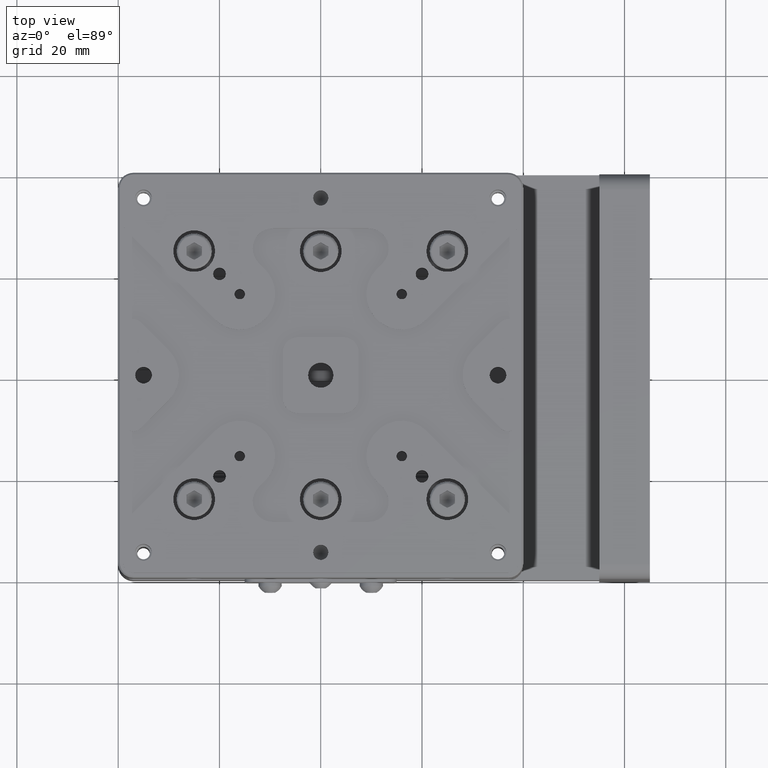
[diagram: clean part render]
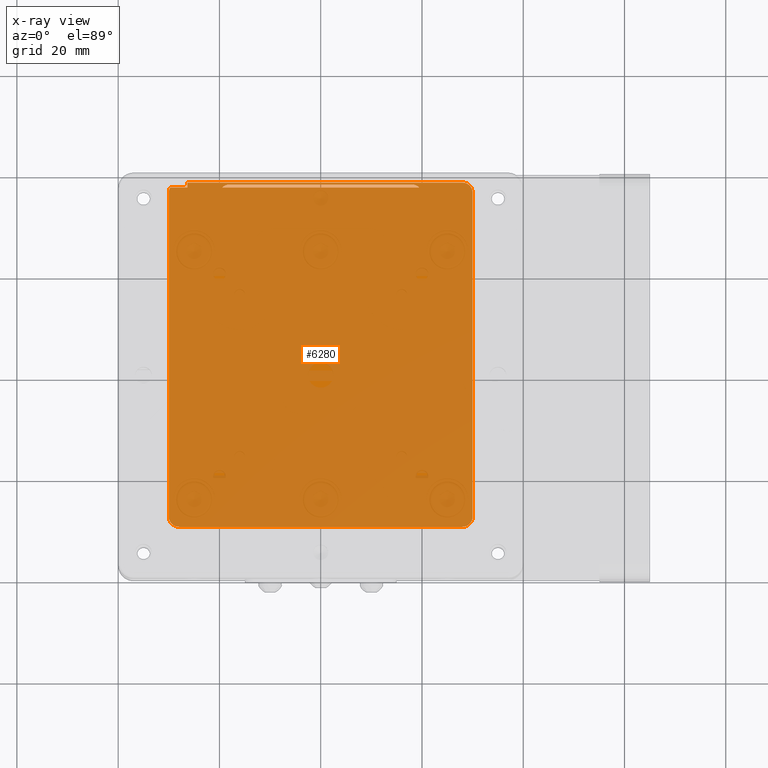
[diagram: x-ray — body ghosted, one internal face saturated and labeled with its STEP entity id]
A machine part, top view, then the same camera in x-ray: the body is ghosted and one INTERNAL B-rep face — a face not visible from any outside direction — is saturated and labeled: STEP entity #6280.
In plain terms, the highlighted planar face has unit normal (0, 0, -1).
Its self-contained STEP definition (entity closure, byte-faithful):
#135 = CARTESIAN_POINT ( 'NONE',  ( -29.64999999999987423, 37.63026545554590996, -11.40550439807743466 ) ) ;
#136 = DIRECTION ( 'NONE',  ( -1.000000000000000000, 0.000000000000000000, 0.000000000000000000 ) ) ;
#213 = DIRECTION ( 'NONE',  ( 0.000000000000000000, 0.000000000000000000, -1.000000000000000000 ) ) ;
#1092 = VERTEX_POINT ( 'NONE', #42782 ) ;
#1109 = VECTOR ( 'NONE', #53252, 1000.000000000000000 ) ;
#1307 = VERTEX_POINT ( 'NONE', #35851 ) ;
#2183 = DIRECTION ( 'NONE',  ( -0.000000000000000000, -1.000000000000000000, 0.000000000000000000 ) ) ;
#2864 = EDGE_LOOP ( 'NONE', ( #39412, #50908, #39846, #31613 ) ) ;
#3633 = VERTEX_POINT ( 'NONE', #22445 ) ;
#4176 = DIRECTION ( 'NONE',  ( -1.000000000000000000, 0.000000000000000000, 0.000000000000000000 ) ) ;
#4932 = EDGE_CURVE ( 'NONE', #19216, #18482, #28644, .T. ) ;
#5502 = CARTESIAN_POINT ( 'NONE',  ( -30.00000000000000000, 0.000000000000000000, -11.40550439807743466 ) ) ;
#6048 = CARTESIAN_POINT ( 'NONE',  ( -29.64999999999999858, 35.50000000000001421, -11.40550439807743466 ) ) ;
#6204 = EDGE_CURVE ( 'NONE', #3633, #19745, #23687, .T. ) ;
#6230 = AXIS2_PLACEMENT_3D ( 'NONE', #28081, #40801, #28373 ) ;
#6280 = ADVANCED_FACE ( 'NONE', ( #50530, #34213 ), #9404, .T. ) ;
#6610 = AXIS2_PLACEMENT_3D ( 'NONE', #9836, #51757, #26905 ) ;
#7859 = ORIENTED_EDGE ( 'NONE', *, *, #24988, .T. ) ;
#8406 = CARTESIAN_POINT ( 'NONE',  ( -28.00000000000000000, 36.50000000000000000, -11.40550439807743466 ) ) ;
#8722 = VECTOR ( 'NONE', #36209, 1000.000000000000000 ) ;
#8870 = DIRECTION ( 'NONE',  ( 0.000000000000000000, 0.000000000000000000, -1.000000000000000000 ) ) ;
#8923 = ORIENTED_EDGE ( 'NONE', *, *, #35606, .T. ) ;
#9404 = PLANE ( 'NONE',  #52769 ) ;
#9836 = CARTESIAN_POINT ( 'NONE',  ( -18.00000000000001421, 36.14999999999999858, -11.40550439807743821 ) ) ;
#11642 = LINE ( 'NONE', #36999, #27814 ) ;
#11777 = DIRECTION ( 'NONE',  ( 0.000000000000000000, 0.000000000000000000, 1.000000000000000000 ) ) ;
#13677 = VERTEX_POINT ( 'NONE', #23567 ) ;
#14966 = EDGE_CURVE ( 'NONE', #1092, #43391, #27449, .T. ) ;
#15549 = VERTEX_POINT ( 'NONE', #26772 ) ;
#16130 = DIRECTION ( 'NONE',  ( -1.000000000000000000, 0.000000000000000000, -0.000000000000000000 ) ) ;
#16456 = DIRECTION ( 'NONE',  ( 1.000000000000000000, 0.000000000000000000, 0.000000000000000000 ) ) ;
#16528 = DIRECTION ( 'NONE',  ( 1.000000000000000000, -0.000000000000000000, 0.000000000000000000 ) ) ;
#17505 = AXIS2_PLACEMENT_3D ( 'NONE', #37832, #41971, #4176 ) ;
#18313 = VERTEX_POINT ( 'NONE', #34356 ) ;
#18482 = VERTEX_POINT ( 'NONE', #27439 ) ;
#18623 = AXIS2_PLACEMENT_3D ( 'NONE', #8406, #41520, #136 ) ;
#19216 = VERTEX_POINT ( 'NONE', #42230 ) ;
#19745 = VERTEX_POINT ( 'NONE', #36562 ) ;
#20311 = CARTESIAN_POINT ( 'NONE',  ( -19.44614971338464571, 37.53153936117561784, -11.40550439807743821 ) ) ;
#21067 = EDGE_CURVE ( 'NONE', #53473, #1092, #24149, .T. ) ;
#22445 = CARTESIAN_POINT ( 'NONE',  ( 30.00000000000000000, -27.50000000000000355, -11.40550439807743466 ) ) ;
#22722 = VECTOR ( 'NONE', #24260, 1000.000000000000000 ) ;
#23067 = VECTOR ( 'NONE', #2183, 1000.000000000000000 ) ;
#23129 = CARTESIAN_POINT ( 'NONE',  ( 0.000000000000000000, -29.50000000000000711, -11.40550439807743466 ) ) ;
#23567 = CARTESIAN_POINT ( 'NONE',  ( 30.00000000000000000, 36.50000000000000000, -11.40550439807743466 ) ) ;
#23687 = CIRCLE ( 'NONE', #17505, 1.999999999999998224 ) ;
#24149 = LINE ( 'NONE', #5502, #45756 ) ;
#24248 = CARTESIAN_POINT ( 'NONE',  ( 0.000000000000000000, 37.53153936117561784, -11.40550439807743466 ) ) ;
#24260 = DIRECTION ( 'NONE',  ( 1.000000000000000000, -0.000000000000000000, 0.000000000000000000 ) ) ;
#24837 = CARTESIAN_POINT ( 'NONE',  ( -18.00000000000001421, 38.15000000000000568, -11.40550439807743643 ) ) ;
#24919 = VERTEX_POINT ( 'NONE', #51561 ) ;
#24988 = EDGE_CURVE ( 'NONE', #19745, #18313, #52638, .T. ) ;
#25033 = CARTESIAN_POINT ( 'NONE',  ( -28.00000000000000000, -27.50000000000000000, -11.40550439807743466 ) ) ;
#25143 = CARTESIAN_POINT ( 'NONE',  ( 0.000000000000000000, 0.000000000000000000, -11.40550439807743466 ) ) ;
#25346 = AXIS2_PLACEMENT_3D ( 'NONE', #25033, #213, #41865 ) ;
#25374 = EDGE_CURVE ( 'NONE', #45454, #47284, #47106, .T. ) ;
#26772 = CARTESIAN_POINT ( 'NONE',  ( 18.00000000000001421, 38.15000000000000568, -11.40550439807743643 ) ) ;
#26775 = CARTESIAN_POINT ( 'NONE',  ( 28.00000000000000000, 38.49999999999999289, -11.40550439807743466 ) ) ;
#26905 = DIRECTION ( 'NONE',  ( 1.000000000000000000, 0.000000000000000000, 0.000000000000000000 ) ) ;
#27439 = CARTESIAN_POINT ( 'NONE',  ( -26.35000000000000142, 37.53153936117561784, -11.40550439807743821 ) ) ;
#27449 = CIRCLE ( 'NONE', #18623, 1.999999999999998224 ) ;
#27814 = VECTOR ( 'NONE', #28437, 1000.000000000000000 ) ;
#28081 = CARTESIAN_POINT ( 'NONE',  ( 28.00000000000000000, 36.50000000000000000, -11.40550439807743466 ) ) ;
#28373 = DIRECTION ( 'NONE',  ( -1.000000000000000000, 0.000000000000000000, 0.000000000000000000 ) ) ;
#28437 = DIRECTION ( 'NONE',  ( -0.000000000000000000, 1.000000000000000000, 0.000000000000000000 ) ) ;
#28644 = LINE ( 'NONE', #24248, #44137 ) ;
#29256 = EDGE_CURVE ( 'NONE', #18482, #24919, #11642, .T. ) ;
#29319 = ORIENTED_EDGE ( 'NONE', *, *, #39501, .T. ) ;
#31568 = VERTEX_POINT ( 'NONE', #26775 ) ;
#31613 = ORIENTED_EDGE ( 'NONE', *, *, #42977, .T. ) ;
#31742 = ORIENTED_EDGE ( 'NONE', *, *, #6204, .T. ) ;
#32154 = EDGE_CURVE ( 'NONE', #18313, #53473, #41216, .T. ) ;
#32333 = LINE ( 'NONE', #35925, #8722 ) ;
#32527 = CARTESIAN_POINT ( 'NONE',  ( 0.000000000000000000, 37.53153936117561784, -11.40550439807743466 ) ) ;
#33201 = LINE ( 'NONE', #50326, #34259 ) ;
#34213 = FACE_BOUND ( 'NONE', #2864, .T. ) ;
#34259 = VECTOR ( 'NONE', #16130, 1000.000000000000000 ) ;
#34356 = CARTESIAN_POINT ( 'NONE',  ( -28.00000000000000000, -29.50000000000000711, -11.40550439807743466 ) ) ;
#35265 = CIRCLE ( 'NONE', #6230, 1.999999999999998224 ) ;
#35606 = EDGE_CURVE ( 'NONE', #31568, #13677, #35265, .T. ) ;
#35851 = CARTESIAN_POINT ( 'NONE',  ( 19.44614971338464571, 37.53153936117561784, -11.40550439807743821 ) ) ;
#35925 = CARTESIAN_POINT ( 'NONE',  ( 0.000000000000000000, 38.50000000000000000, -11.40550439807743466 ) ) ;
#36209 = DIRECTION ( 'NONE',  ( 1.000000000000000000, -0.000000000000000000, 0.000000000000000000 ) ) ;
#36402 = CARTESIAN_POINT ( 'NONE',  ( 30.00000000000000000, 0.000000000000000000, -11.40550439807743466 ) ) ;
#36562 = CARTESIAN_POINT ( 'NONE',  ( 28.00000000000000355, -29.50000000000000711, -11.40550439807743466 ) ) ;
#36999 = CARTESIAN_POINT ( 'NONE',  ( -26.35000000000000142, 35.50000000000001421, -11.40550439807743643 ) ) ;
#37832 = CARTESIAN_POINT ( 'NONE',  ( 28.00000000000000000, -27.50000000000000000, -11.40550439807743466 ) ) ;
#38113 = DIRECTION ( 'NONE',  ( -1.000000000000000000, 0.000000000000000000, -0.000000000000000000 ) ) ;
#38253 = ORIENTED_EDGE ( 'NONE', *, *, #32154, .T. ) ;
#38874 = CIRCLE ( 'NONE', #40650, 2.000000000000001776 ) ;
#39412 = ORIENTED_EDGE ( 'NONE', *, *, #47212, .T. ) ;
#39501 = EDGE_CURVE ( 'NONE', #43391, #19216, #51848, .T. ) ;
#39846 = ORIENTED_EDGE ( 'NONE', *, *, #25374, .T. ) ;
#40650 = AXIS2_PLACEMENT_3D ( 'NONE', #40735, #11777, #16456 ) ;
#40735 = CARTESIAN_POINT ( 'NONE',  ( 18.00000000000001421, 36.14999999999999858, -11.40550439807743821 ) ) ;
#40801 = DIRECTION ( 'NONE',  ( 0.000000000000000000, 0.000000000000000000, -1.000000000000000000 ) ) ;
#41216 = CIRCLE ( 'NONE', #25346, 1.999999999999998224 ) ;
#41520 = DIRECTION ( 'NONE',  ( 0.000000000000000000, 0.000000000000000000, -1.000000000000000000 ) ) ;
#41865 = DIRECTION ( 'NONE',  ( -1.000000000000000000, 0.000000000000000000, 0.000000000000000000 ) ) ;
#41971 = DIRECTION ( 'NONE',  ( 0.000000000000000000, 0.000000000000000000, -1.000000000000000000 ) ) ;
#42230 = CARTESIAN_POINT ( 'NONE',  ( -29.64999999999999858, 37.53153936117561784, -11.40550439807743643 ) ) ;
#42782 = CARTESIAN_POINT ( 'NONE',  ( -30.00000000000000000, 36.50000000000000711, -11.40550439807743466 ) ) ;
#42977 = EDGE_CURVE ( 'NONE', #47284, #1307, #54341, .T. ) ;
#43391 = VERTEX_POINT ( 'NONE', #135 ) ;
#43695 = EDGE_CURVE ( 'NONE', #24919, #31568, #32333, .T. ) ;
#44137 = VECTOR ( 'NONE', #16528, 1000.000000000000000 ) ;
#44150 = CARTESIAN_POINT ( 'NONE',  ( -30.00000000000000000, -27.50000000000000000, -11.40550439807743466 ) ) ;
#44467 = VECTOR ( 'NONE', #47945, 1000.000000000000000 ) ;
#45268 = ORIENTED_EDGE ( 'NONE', *, *, #4932, .T. ) ;
#45454 = VERTEX_POINT ( 'NONE', #24837 ) ;
#45756 = VECTOR ( 'NONE', #48434, 1000.000000000000000 ) ;
#45892 = ORIENTED_EDGE ( 'NONE', *, *, #14966, .T. ) ;
#46971 = EDGE_LOOP ( 'NONE', ( #52691, #45892, #29319, #45268, #49333, #48920, #8923, #48620, #31742, #7859, #38253 ) ) ;
#47106 = CIRCLE ( 'NONE', #6610, 2.000000000000001776 ) ;
#47212 = EDGE_CURVE ( 'NONE', #1307, #15549, #38874, .T. ) ;
#47284 = VERTEX_POINT ( 'NONE', #20311 ) ;
#47945 = DIRECTION ( 'NONE',  ( -1.000000000000000000, 0.000000000000000000, -0.000000000000000000 ) ) ;
#48434 = DIRECTION ( 'NONE',  ( 0.000000000000000000, 1.000000000000000000, 0.000000000000000000 ) ) ;
#48620 = ORIENTED_EDGE ( 'NONE', *, *, #49661, .T. ) ;
#48920 = ORIENTED_EDGE ( 'NONE', *, *, #43695, .T. ) ;
#49333 = ORIENTED_EDGE ( 'NONE', *, *, #29256, .T. ) ;
#49640 = LINE ( 'NONE', #36402, #1109 ) ;
#49661 = EDGE_CURVE ( 'NONE', #13677, #3633, #49640, .T. ) ;
#50326 = CARTESIAN_POINT ( 'NONE',  ( 0.000000000000000000, 38.15000000000000568, -11.40550439807743466 ) ) ;
#50530 = FACE_OUTER_BOUND ( 'NONE', #46971, .T. ) ;
#50908 = ORIENTED_EDGE ( 'NONE', *, *, #52846, .T. ) ;
#51561 = CARTESIAN_POINT ( 'NONE',  ( -26.35000000000000142, 38.50000000000000000, -11.40550439807743288 ) ) ;
#51757 = DIRECTION ( 'NONE',  ( 0.000000000000000000, 0.000000000000000000, 1.000000000000000000 ) ) ;
#51848 = LINE ( 'NONE', #6048, #23067 ) ;
#52638 = LINE ( 'NONE', #23129, #44467 ) ;
#52691 = ORIENTED_EDGE ( 'NONE', *, *, #21067, .T. ) ;
#52769 = AXIS2_PLACEMENT_3D ( 'NONE', #25143, #8870, #38113 ) ;
#52846 = EDGE_CURVE ( 'NONE', #15549, #45454, #33201, .T. ) ;
#53252 = DIRECTION ( 'NONE',  ( -0.000000000000000000, -1.000000000000000000, -0.000000000000000000 ) ) ;
#53473 = VERTEX_POINT ( 'NONE', #44150 ) ;
#54341 = LINE ( 'NONE', #32527, #22722 ) ;